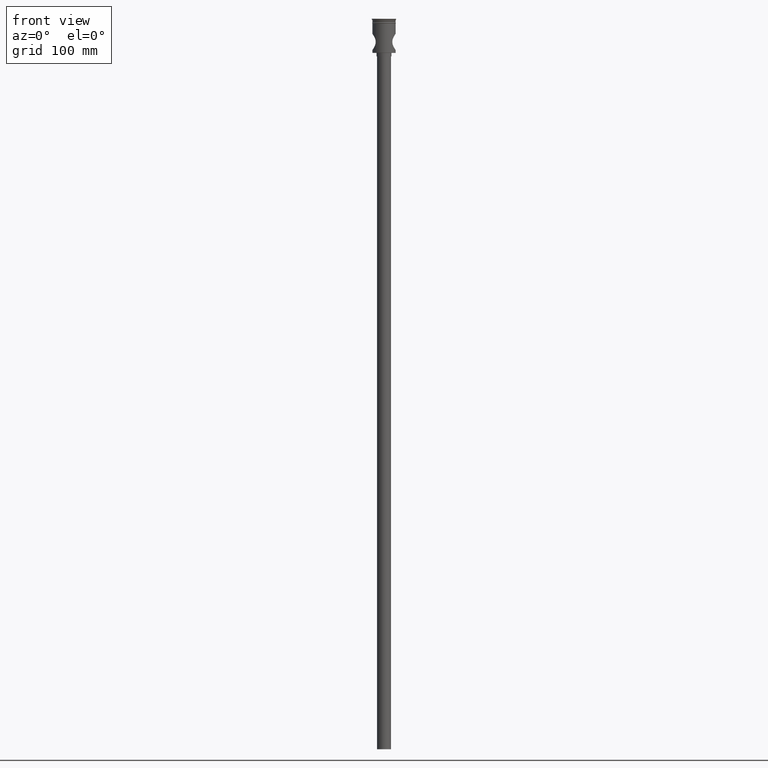
[diagram: clean part render]
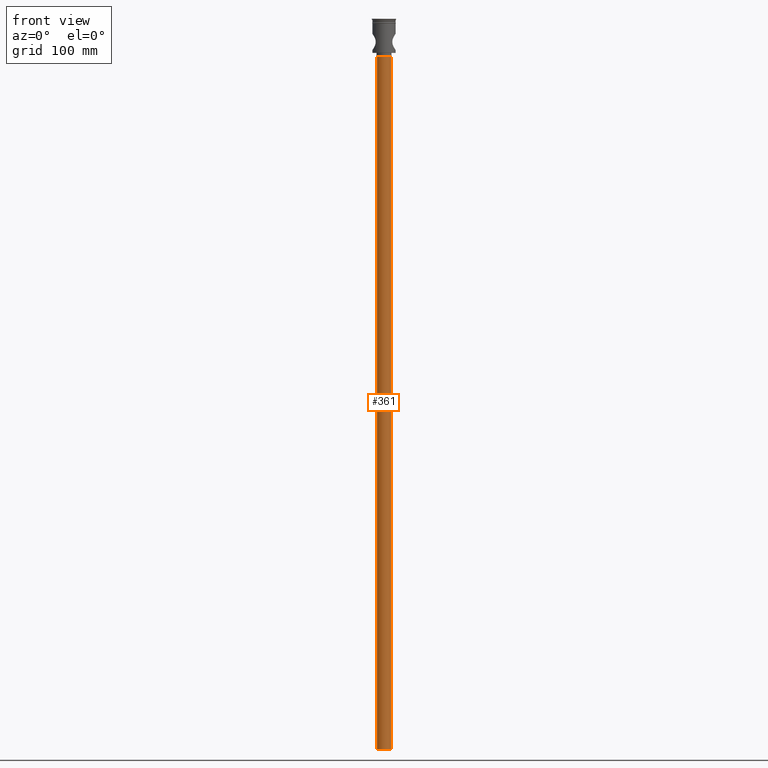
[diagram: same view with one face highlighted and labeled with its STEP entity id]
A machine part, front view. The second image highlights one B-rep face of the part: STEP entity #361.
In plain terms, the highlighted cylindrical surface (edge-blend (fillet) strip) has radius 6 mm, axis along (-0, -0, 1).
Its self-contained STEP definition (entity closure, byte-faithful):
#29 = DIRECTION ( 'NONE',  ( -0.000000000000000000, -0.000000000000000000, 1.000000000000000000 ) ) ;
#102 = DIRECTION ( 'NONE',  ( -1.000000000000000000, 0.000000000000000000, 0.000000000000000000 ) ) ;
#112 = DIRECTION ( 'NONE',  ( 0.000000000000000000, 0.000000000000000000, -1.000000000000000000 ) ) ;
#150 = CYLINDRICAL_SURFACE ( 'NONE', #601, 6.000000000000000888 ) ;
#210 = AXIS2_PLACEMENT_3D ( 'NONE', #1276, #687, #102 ) ;
#330 = CARTESIAN_POINT ( 'NONE',  ( 6.000000000000000888, 0.000000000000000000, -629.5000000000000000 ) ) ;
#339 = VERTEX_POINT ( 'NONE', #736 ) ;
#346 = EDGE_LOOP ( 'NONE', ( #1194, #1101, #431, #1445 ) ) ;
#351 = DIRECTION ( 'NONE',  ( -0.000000000000000000, -0.000000000000000000, 1.000000000000000000 ) ) ;
#361 = ADVANCED_FACE ( 'NONE', ( #727 ), #150, .T. ) ;
#393 = VERTEX_POINT ( 'NONE', #1024 ) ;
#431 = ORIENTED_EDGE ( 'NONE', *, *, #449, .T. ) ;
#449 = EDGE_CURVE ( 'NONE', #1028, #945, #815, .T. ) ;
#453 = CARTESIAN_POINT ( 'NONE',  ( 0.000000000000000000, 0.000000000000000000, -629.5000000000000000 ) ) ;
#478 = CARTESIAN_POINT ( 'NONE',  ( 6.000000000000000888, 0.000000000000000000, -629.5000000000000000 ) ) ;
#601 = AXIS2_PLACEMENT_3D ( 'NONE', #620, #29, #1453 ) ;
#620 = CARTESIAN_POINT ( 'NONE',  ( 0.000000000000000000, 0.000000000000000000, -629.5000000000000000 ) ) ;
#684 = CIRCLE ( 'NONE', #210, 6.000000000000000888 ) ;
#687 = DIRECTION ( 'NONE',  ( 0.000000000000000000, 0.000000000000000000, -1.000000000000000000 ) ) ;
#727 = FACE_OUTER_BOUND ( 'NONE', #346, .T. ) ;
#736 = CARTESIAN_POINT ( 'NONE',  ( -6.000000000000000888, 7.347880794884120722E-16, -32.50000000000000000 ) ) ;
#815 = LINE ( 'NONE', #330, #1233 ) ;
#849 = CARTESIAN_POINT ( 'NONE',  ( -6.000000000000000888, 7.347880794884120722E-16, -629.5000000000000000 ) ) ;
#945 = VERTEX_POINT ( 'NONE', #1395 ) ;
#1024 = CARTESIAN_POINT ( 'NONE',  ( -6.000000000000000888, 7.347880794884120722E-16, -629.5000000000000000 ) ) ;
#1028 = VERTEX_POINT ( 'NONE', #478 ) ;
#1069 = EDGE_CURVE ( 'NONE', #393, #339, #1307, .T. ) ;
#1101 = ORIENTED_EDGE ( 'NONE', *, *, #1378, .F. ) ;
#1114 = CIRCLE ( 'NONE', #1328, 6.000000000000000888 ) ;
#1194 = ORIENTED_EDGE ( 'NONE', *, *, #1069, .F. ) ;
#1207 = VECTOR ( 'NONE', #351, 1000.000000000000000 ) ;
#1233 = VECTOR ( 'NONE', #1391, 1000.000000000000000 ) ;
#1276 = CARTESIAN_POINT ( 'NONE',  ( 0.000000000000000000, 0.000000000000000000, -32.50000000000000000 ) ) ;
#1307 = LINE ( 'NONE', #849, #1207 ) ;
#1328 = AXIS2_PLACEMENT_3D ( 'NONE', #453, #112, #1448 ) ;
#1359 = EDGE_CURVE ( 'NONE', #945, #339, #684, .T. ) ;
#1378 = EDGE_CURVE ( 'NONE', #1028, #393, #1114, .T. ) ;
#1391 = DIRECTION ( 'NONE',  ( -0.000000000000000000, -0.000000000000000000, 1.000000000000000000 ) ) ;
#1395 = CARTESIAN_POINT ( 'NONE',  ( 6.000000000000000888, 0.000000000000000000, -32.50000000000000000 ) ) ;
#1445 = ORIENTED_EDGE ( 'NONE', *, *, #1359, .T. ) ;
#1448 = DIRECTION ( 'NONE',  ( -1.000000000000000000, 0.000000000000000000, 0.000000000000000000 ) ) ;
#1453 = DIRECTION ( 'NONE',  ( 1.000000000000000000, 0.000000000000000000, 0.000000000000000000 ) ) ;